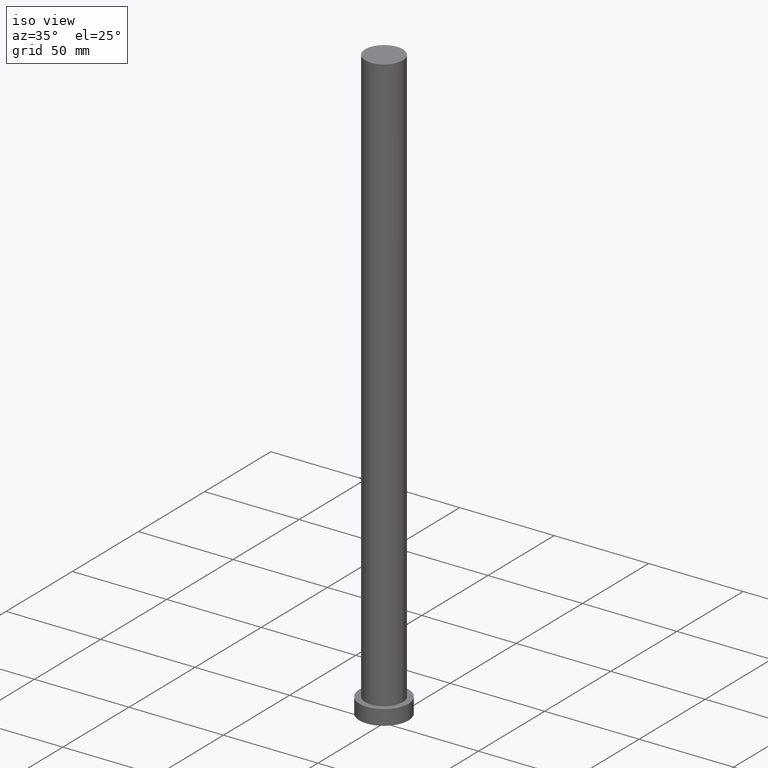
[diagram: clean part render]
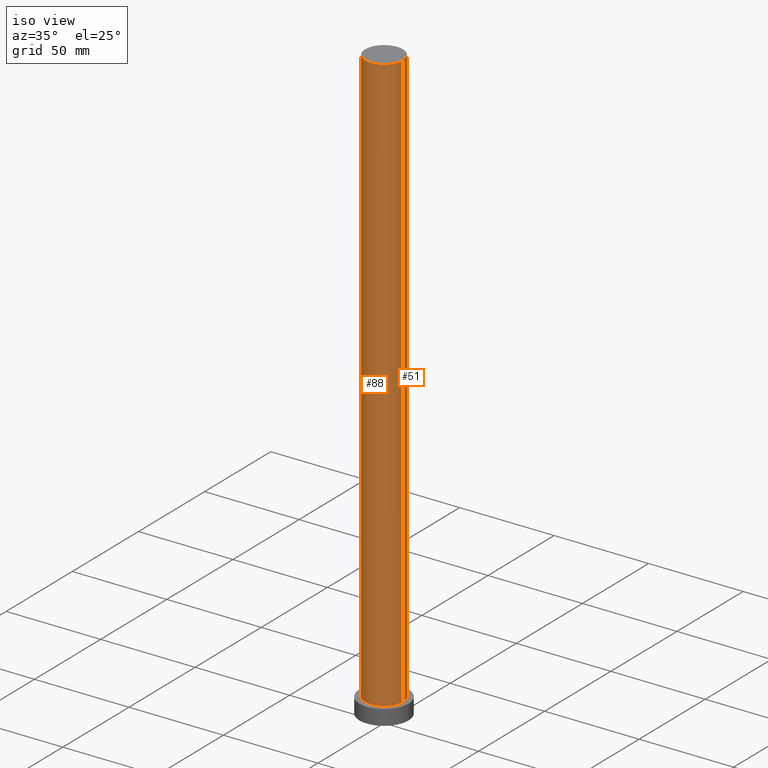
[diagram: same view with one multi-face feature highlighted, each face labeled with its STEP entity id]
A machine part, iso view. The highlighted faces form ONE feature: a constant-radius fillet chain: 2 tangent blend faces with common blend radius 10 mm. The faces share edges in the B-rep.
Their STEP definitions:
[1] entity #51 (Cylinder):
#3 = VERTEX_POINT ( 'NONE', #6 ) ;
#6 = CARTESIAN_POINT ( 'NONE',  ( 10.00000000000000000, 1.224646799147353256E-15, 8.000000000000000000 ) ) ;
#12 = VECTOR ( 'NONE', #186, 1000.000000000000000 ) ;
#14 = EDGE_CURVE ( 'NONE', #43, #228, #47, .T. ) ;
#21 = VECTOR ( 'NONE', #99, 1000.000000000000000 ) ;
#24 = ORIENTED_EDGE ( 'NONE', *, *, #14, .F. ) ;
#28 = CARTESIAN_POINT ( 'NONE',  ( 10.00000000000000000, 1.224646799147353256E-15, 315.0000000000000000 ) ) ;
#34 = AXIS2_PLACEMENT_3D ( 'NONE', #178, #179, #69 ) ;
#43 = VERTEX_POINT ( 'NONE', #120 ) ;
#47 = CIRCLE ( 'NONE', #194, 10.00000000000000000 ) ;
#50 = DIRECTION ( 'NONE',  ( 1.000000000000000000, 0.000000000000000000, 0.000000000000000000 ) ) ;
#51 = ADVANCED_FACE ( 'NONE', ( #116 ), #200, .T. ) ;
#56 = ORIENTED_EDGE ( 'NONE', *, *, #80, .F. ) ;
#69 = DIRECTION ( 'NONE',  ( -1.000000000000000000, 0.000000000000000000, 0.000000000000000000 ) ) ;
#80 = EDGE_CURVE ( 'NONE', #228, #243, #255, .T. ) ;
#89 = EDGE_LOOP ( 'NONE', ( #24, #235, #180, #56 ) ) ;
#91 = CIRCLE ( 'NONE', #213, 10.00000000000000000 ) ;
#99 = DIRECTION ( 'NONE',  ( -0.000000000000000000, -0.000000000000000000, -1.000000000000000000 ) ) ;
#116 = FACE_OUTER_BOUND ( 'NONE', #89, .T. ) ;
#120 = CARTESIAN_POINT ( 'NONE',  ( 10.00000000000000000, 1.224646799147353256E-15, 315.0000000000000000 ) ) ;
#132 = DIRECTION ( 'NONE',  ( 0.000000000000000000, 0.000000000000000000, 1.000000000000000000 ) ) ;
#140 = CARTESIAN_POINT ( 'NONE',  ( 0.000000000000000000, 0.000000000000000000, 8.000000000000000000 ) ) ;
#162 = EDGE_CURVE ( 'NONE', #3, #243, #91, .T. ) ;
#178 = CARTESIAN_POINT ( 'NONE',  ( 0.000000000000000000, 0.000000000000000000, 315.0000000000000000 ) ) ;
#179 = DIRECTION ( 'NONE',  ( -0.000000000000000000, -0.000000000000000000, -1.000000000000000000 ) ) ;
#180 = ORIENTED_EDGE ( 'NONE', *, *, #162, .T. ) ;
#186 = DIRECTION ( 'NONE',  ( -0.000000000000000000, -0.000000000000000000, -1.000000000000000000 ) ) ;
#190 = CARTESIAN_POINT ( 'NONE',  ( -10.00000000000000000, 0.000000000000000000, 315.0000000000000000 ) ) ;
#193 = DIRECTION ( 'NONE',  ( 1.000000000000000000, 0.000000000000000000, 0.000000000000000000 ) ) ;
#194 = AXIS2_PLACEMENT_3D ( 'NONE', #215, #132, #193 ) ;
#200 = CYLINDRICAL_SURFACE ( 'NONE', #34, 10.00000000000000000 ) ;
#201 = CARTESIAN_POINT ( 'NONE',  ( -10.00000000000000000, 0.000000000000000000, 315.0000000000000000 ) ) ;
#208 = LINE ( 'NONE', #28, #12 ) ;
#213 = AXIS2_PLACEMENT_3D ( 'NONE', #140, #223, #50 ) ;
#215 = CARTESIAN_POINT ( 'NONE',  ( 0.000000000000000000, 0.000000000000000000, 315.0000000000000000 ) ) ;
#223 = DIRECTION ( 'NONE',  ( 0.000000000000000000, 0.000000000000000000, 1.000000000000000000 ) ) ;
#226 = CARTESIAN_POINT ( 'NONE',  ( -10.00000000000000000, 0.000000000000000000, 8.000000000000000000 ) ) ;
#228 = VERTEX_POINT ( 'NONE', #190 ) ;
#235 = ORIENTED_EDGE ( 'NONE', *, *, #254, .T. ) ;
#243 = VERTEX_POINT ( 'NONE', #226 ) ;
#254 = EDGE_CURVE ( 'NONE', #43, #3, #208, .T. ) ;
#255 = LINE ( 'NONE', #201, #21 ) ;
[2] entity #88 (Cylinder):
#3 = VERTEX_POINT ( 'NONE', #6 ) ;
#6 = CARTESIAN_POINT ( 'NONE',  ( 10.00000000000000000, 1.224646799147353256E-15, 8.000000000000000000 ) ) ;
#12 = VECTOR ( 'NONE', #186, 1000.000000000000000 ) ;
#21 = VECTOR ( 'NONE', #99, 1000.000000000000000 ) ;
#26 = DIRECTION ( 'NONE',  ( 0.000000000000000000, 0.000000000000000000, 1.000000000000000000 ) ) ;
#28 = CARTESIAN_POINT ( 'NONE',  ( 10.00000000000000000, 1.224646799147353256E-15, 315.0000000000000000 ) ) ;
#38 = AXIS2_PLACEMENT_3D ( 'NONE', #92, #138, #221 ) ;
#43 = VERTEX_POINT ( 'NONE', #120 ) ;
#63 = CARTESIAN_POINT ( 'NONE',  ( 0.000000000000000000, 0.000000000000000000, 315.0000000000000000 ) ) ;
#80 = EDGE_CURVE ( 'NONE', #228, #243, #255, .T. ) ;
#83 = FACE_OUTER_BOUND ( 'NONE', #122, .T. ) ;
#88 = ADVANCED_FACE ( 'NONE', ( #83 ), #172, .T. ) ;
#92 = CARTESIAN_POINT ( 'NONE',  ( 0.000000000000000000, 0.000000000000000000, 8.000000000000000000 ) ) ;
#99 = DIRECTION ( 'NONE',  ( -0.000000000000000000, -0.000000000000000000, -1.000000000000000000 ) ) ;
#101 = CARTESIAN_POINT ( 'NONE',  ( 0.000000000000000000, 0.000000000000000000, 315.0000000000000000 ) ) ;
#103 = ORIENTED_EDGE ( 'NONE', *, *, #124, .T. ) ;
#120 = CARTESIAN_POINT ( 'NONE',  ( 10.00000000000000000, 1.224646799147353256E-15, 315.0000000000000000 ) ) ;
#122 = EDGE_LOOP ( 'NONE', ( #185, #206, #236, #103 ) ) ;
#124 = EDGE_CURVE ( 'NONE', #243, #3, #230, .T. ) ;
#128 = DIRECTION ( 'NONE',  ( -1.000000000000000000, 0.000000000000000000, 0.000000000000000000 ) ) ;
#138 = DIRECTION ( 'NONE',  ( 0.000000000000000000, 0.000000000000000000, 1.000000000000000000 ) ) ;
#154 = CIRCLE ( 'NONE', #168, 10.00000000000000000 ) ;
#168 = AXIS2_PLACEMENT_3D ( 'NONE', #101, #26, #183 ) ;
#172 = CYLINDRICAL_SURFACE ( 'NONE', #244, 10.00000000000000000 ) ;
#183 = DIRECTION ( 'NONE',  ( 1.000000000000000000, 0.000000000000000000, 0.000000000000000000 ) ) ;
#185 = ORIENTED_EDGE ( 'NONE', *, *, #254, .F. ) ;
#186 = DIRECTION ( 'NONE',  ( -0.000000000000000000, -0.000000000000000000, -1.000000000000000000 ) ) ;
#190 = CARTESIAN_POINT ( 'NONE',  ( -10.00000000000000000, 0.000000000000000000, 315.0000000000000000 ) ) ;
#201 = CARTESIAN_POINT ( 'NONE',  ( -10.00000000000000000, 0.000000000000000000, 315.0000000000000000 ) ) ;
#206 = ORIENTED_EDGE ( 'NONE', *, *, #207, .F. ) ;
#207 = EDGE_CURVE ( 'NONE', #228, #43, #154, .T. ) ;
#208 = LINE ( 'NONE', #28, #12 ) ;
#214 = DIRECTION ( 'NONE',  ( -0.000000000000000000, -0.000000000000000000, -1.000000000000000000 ) ) ;
#221 = DIRECTION ( 'NONE',  ( 1.000000000000000000, 0.000000000000000000, 0.000000000000000000 ) ) ;
#226 = CARTESIAN_POINT ( 'NONE',  ( -10.00000000000000000, 0.000000000000000000, 8.000000000000000000 ) ) ;
#228 = VERTEX_POINT ( 'NONE', #190 ) ;
#230 = CIRCLE ( 'NONE', #38, 10.00000000000000000 ) ;
#236 = ORIENTED_EDGE ( 'NONE', *, *, #80, .T. ) ;
#243 = VERTEX_POINT ( 'NONE', #226 ) ;
#244 = AXIS2_PLACEMENT_3D ( 'NONE', #63, #214, #128 ) ;
#254 = EDGE_CURVE ( 'NONE', #43, #3, #208, .T. ) ;
#255 = LINE ( 'NONE', #201, #21 ) ;